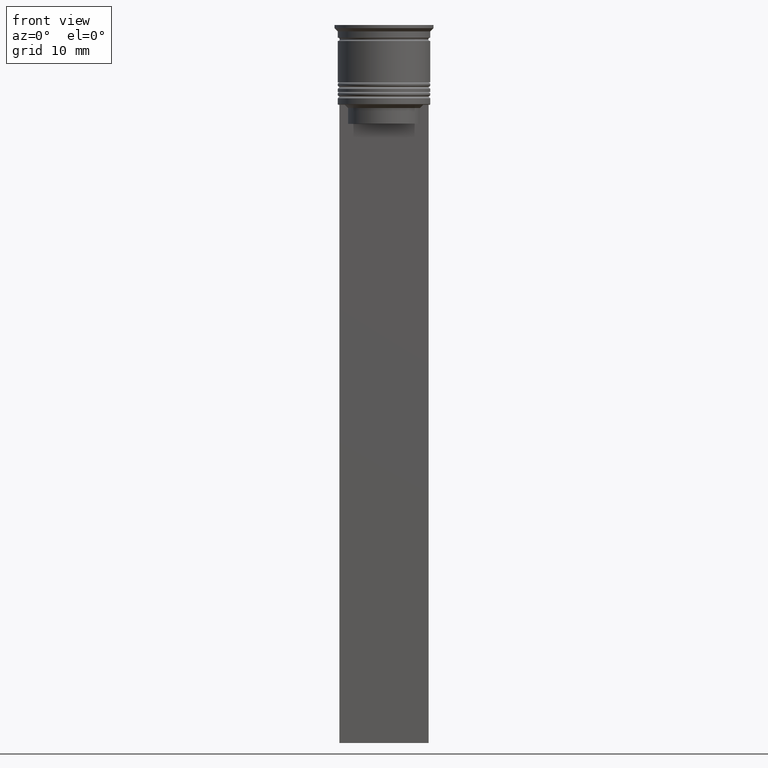
[diagram: clean part render]
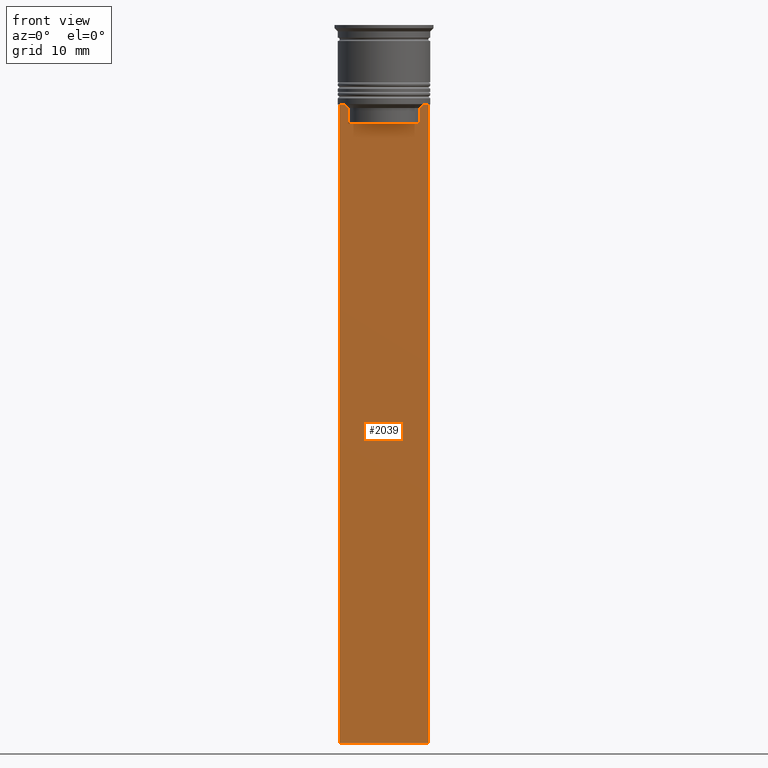
[diagram: same view with one face highlighted and labeled with its STEP entity id]
A machine part, front view. The second image highlights one B-rep face of the part: STEP entity #2039.
In plain terms, the highlighted planar face has unit normal (0, -1, -0).
Its self-contained STEP definition (entity closure, byte-faithful):
#4 = DIRECTION ( 'NONE',  ( 0.000000000000000000, 0.000000000000000000, -1.000000000000000000 ) ) ;
#5 = PLANE ( 'NONE',  #1995 ) ;
#49 = EDGE_CURVE ( 'NONE', #1230, #468, #1777, .T. ) ;
#62 = ORIENTED_EDGE ( 'NONE', *, *, #137, .F. ) ;
#105 = VECTOR ( 'NONE', #1579, 1000.000000000000000 ) ;
#121 = CARTESIAN_POINT ( 'NONE',  ( -6.129641098791995368, -0.5000000000000022204, -12.50000000000000000 ) ) ;
#137 = EDGE_CURVE ( 'NONE', #1480, #2201, #540, .T. ) ;
#145 = LINE ( 'NONE', #248, #105 ) ;
#167 = LINE ( 'NONE', #1981, #487 ) ;
#178 = DIRECTION ( 'NONE',  ( 0.000000000000000000, -1.000000000000000000, -0.000000000000000000 ) ) ;
#189 = DIRECTION ( 'NONE',  ( -0.000000000000000000, -0.000000000000000000, 1.000000000000000000 ) ) ;
#248 = CARTESIAN_POINT ( 'NONE',  ( 0.000000000000000000, -0.5000000000000022204, -15.50000000000000000 ) ) ;
#252 = CARTESIAN_POINT ( 'NONE',  ( 7.000000000000012434, -0.5000000000000022204, -112.5000000000000000 ) ) ;
#327 = CARTESIAN_POINT ( 'NONE',  ( -6.129641098791995368, -0.5000000000000022204, -12.50000000000000000 ) ) ;
#349 = ORIENTED_EDGE ( 'NONE', *, *, #2316, .F. ) ;
#366 = CARTESIAN_POINT ( 'NONE',  ( 5.627832620112292794, -0.5000000000000022204, 0.000000000000000000 ) ) ;
#437 = DIRECTION ( 'NONE',  ( 1.000000000000000000, 0.000000000000000000, 0.000000000000000000 ) ) ;
#443 = CARTESIAN_POINT ( 'NONE',  ( -5.627832620112292794, -0.5000000000000022204, -13.00000000000000000 ) ) ;
#468 = VERTEX_POINT ( 'NONE', #1400 ) ;
#470 = EDGE_CURVE ( 'NONE', #1292, #1840, #1336, .T. ) ;
#487 = VECTOR ( 'NONE', #4, 1000.000000000000000 ) ;
#498 = CARTESIAN_POINT ( 'NONE',  ( 6.129641098791995368, -0.5000000000000022204, -12.50000000000000000 ) ) ;
#540 = LINE ( 'NONE', #366, #1222 ) ;
#550 = LINE ( 'NONE', #1257, #1535 ) ;
#580 = VERTEX_POINT ( 'NONE', #1786 ) ;
#669 = ORIENTED_EDGE ( 'NONE', *, *, #845, .F. ) ;
#706 = CARTESIAN_POINT ( 'NONE',  ( -5.627832620112292794, -0.5000000000000022204, 0.000000000000000000 ) ) ;
#735 = CARTESIAN_POINT ( 'NONE',  ( 7.000000000000012434, -0.5000000000000022204, 1.535668847618198329 ) ) ;
#750 = VECTOR ( 'NONE', #1785, 1000.000000000000000 ) ;
#825 = VECTOR ( 'NONE', #2016, 1000.000000000000000 ) ;
#831 = EDGE_LOOP ( 'NONE', ( #1378, #1528, #912, #1472, #1194, #1022, #349, #62, #669, #2207 ) ) ;
#839 = CARTESIAN_POINT ( 'NONE',  ( -6.999999999999987566, -0.5000000000000022204, -12.50000000000000000 ) ) ;
#845 = EDGE_CURVE ( 'NONE', #1790, #1480, #145, .T. ) ;
#855 = CARTESIAN_POINT ( 'NONE',  ( -5.627832620112292794, -0.5000000000000022204, -13.00000000000000000 ) ) ;
#881 = CARTESIAN_POINT ( 'NONE',  ( 7.000000000000012434, -0.5000000000000022204, -112.5000000000000000 ) ) ;
#912 = ORIENTED_EDGE ( 'NONE', *, *, #49, .T. ) ;
#913 = EDGE_CURVE ( 'NONE', #580, #1782, #1251, .T. ) ;
#944 = EDGE_CURVE ( 'NONE', #1782, #981, #167, .T. ) ;
#981 = VERTEX_POINT ( 'NONE', #881 ) ;
#1022 = ORIENTED_EDGE ( 'NONE', *, *, #913, .F. ) ;
#1056 = CARTESIAN_POINT ( 'NONE',  ( -6.999999999999987566, -0.5000000000000022204, 1.535668847618198329 ) ) ;
#1070 = LINE ( 'NONE', #706, #750 ) ;
#1086 = EDGE_CURVE ( 'NONE', #981, #468, #2043, .T. ) ;
#1168 = CARTESIAN_POINT ( 'NONE',  ( 5.962396079681182570, -0.5000000000000022204, -12.66669137279835766 ) ) ;
#1194 = ORIENTED_EDGE ( 'NONE', *, *, #944, .F. ) ;
#1214 = DIRECTION ( 'NONE',  ( 0.000000000000000000, 0.000000000000000000, -1.000000000000000000 ) ) ;
#1222 = VECTOR ( 'NONE', #189, 1000.000000000000000 ) ;
#1230 = VERTEX_POINT ( 'NONE', #839 ) ;
#1251 = LINE ( 'NONE', #1263, #2221 ) ;
#1257 = CARTESIAN_POINT ( 'NONE',  ( 7.000000000000012434, -0.5000000000000022204, -12.50000000000000000 ) ) ;
#1263 = CARTESIAN_POINT ( 'NONE',  ( 7.000000000000012434, -0.5000000000000022204, -12.50000000000000000 ) ) ;
#1292 = VERTEX_POINT ( 'NONE', #121 ) ;
#1336 = B_SPLINE_CURVE_WITH_KNOTS ( 'NONE', 3,
 ( #327, #1581, #1955, #855 ),
 .UNSPECIFIED., .F., .F.,
 ( 4, 4 ),
 ( 0.01045365750109871796, 0.01116204421161398619 ),
 .UNSPECIFIED. ) ;
#1378 = ORIENTED_EDGE ( 'NONE', *, *, #470, .F. ) ;
#1400 = CARTESIAN_POINT ( 'NONE',  ( -6.999999999999987566, -0.5000000000000022204, -112.5000000000000000 ) ) ;
#1472 = ORIENTED_EDGE ( 'NONE', *, *, #1086, .F. ) ;
#1473 = EDGE_CURVE ( 'NONE', #1230, #1292, #550, .T. ) ;
#1480 = VERTEX_POINT ( 'NONE', #1915 ) ;
#1492 = CARTESIAN_POINT ( 'NONE',  ( 5.627832620112292794, -0.5000000000000022204, -13.00000000000000000 ) ) ;
#1528 = ORIENTED_EDGE ( 'NONE', *, *, #1473, .F. ) ;
#1535 = VECTOR ( 'NONE', #437, 1000.000000000000000 ) ;
#1579 = DIRECTION ( 'NONE',  ( 1.000000000000000000, 0.000000000000000000, 0.000000000000000000 ) ) ;
#1581 = CARTESIAN_POINT ( 'NONE',  ( -5.962396146966409738, -0.5000000000000022204, -12.66669130573587054 ) ) ;
#1584 = EDGE_CURVE ( 'NONE', #1840, #1790, #1070, .T. ) ;
#1596 = DIRECTION ( 'NONE',  ( 1.000000000000000000, 0.000000000000000000, 0.000000000000000000 ) ) ;
#1740 = CARTESIAN_POINT ( 'NONE',  ( 5.627832620112292794, -0.5000000000000022204, -13.00000000000000000 ) ) ;
#1777 = LINE ( 'NONE', #1056, #2134 ) ;
#1782 = VERTEX_POINT ( 'NONE', #2034 ) ;
#1785 = DIRECTION ( 'NONE',  ( 0.000000000000000000, 0.000000000000000000, -1.000000000000000000 ) ) ;
#1786 = CARTESIAN_POINT ( 'NONE',  ( 6.129641098791995368, -0.5000000000000022204, -12.50000000000000000 ) ) ;
#1790 = VERTEX_POINT ( 'NONE', #2203 ) ;
#1840 = VERTEX_POINT ( 'NONE', #443 ) ;
#1915 = CARTESIAN_POINT ( 'NONE',  ( 5.627832620112292794, -0.5000000000000022204, -15.50000000000000000 ) ) ;
#1955 = CARTESIAN_POINT ( 'NONE',  ( -5.795128834036803234, -0.5000000000000022204, -12.83336016107156574 ) ) ;
#1981 = CARTESIAN_POINT ( 'NONE',  ( 7.000000000000012434, -0.5000000000000022204, 1.535668847618198329 ) ) ;
#1982 = FACE_OUTER_BOUND ( 'NONE', #831, .T. ) ;
#1995 = AXIS2_PLACEMENT_3D ( 'NONE', #735, #178, #2338 ) ;
#2016 = DIRECTION ( 'NONE',  ( -1.000000000000000000, 0.000000000000000000, 0.000000000000000000 ) ) ;
#2034 = CARTESIAN_POINT ( 'NONE',  ( 7.000000000000012434, -0.5000000000000022204, -12.50000000000000000 ) ) ;
#2039 = ADVANCED_FACE ( 'NONE', ( #1982 ), #5, .T. ) ;
#2043 = LINE ( 'NONE', #252, #825 ) ;
#2124 = B_SPLINE_CURVE_WITH_KNOTS ( 'NONE', 3,
 ( #1740, #2246, #1168, #498 ),
 .UNSPECIFIED., .F., .F.,
 ( 4, 4 ),
 ( 0.02651134470867370918, 0.02721991123504334531 ),
 .UNSPECIFIED. ) ;
#2134 = VECTOR ( 'NONE', #1214, 1000.000000000000000 ) ;
#2201 = VERTEX_POINT ( 'NONE', #1492 ) ;
#2203 = CARTESIAN_POINT ( 'NONE',  ( -5.627832620112292794, -0.5000000000000022204, -15.50000000000000000 ) ) ;
#2207 = ORIENTED_EDGE ( 'NONE', *, *, #1584, .F. ) ;
#2221 = VECTOR ( 'NONE', #1596, 1000.000000000000000 ) ;
#2246 = CARTESIAN_POINT ( 'NONE',  ( 5.795128760752288777, -0.5000000000000022204, -12.83336023406855375 ) ) ;
#2316 = EDGE_CURVE ( 'NONE', #2201, #580, #2124, .T. ) ;
#2338 = DIRECTION ( 'NONE',  ( 0.000000000000000000, 0.000000000000000000, -1.000000000000000000 ) ) ;